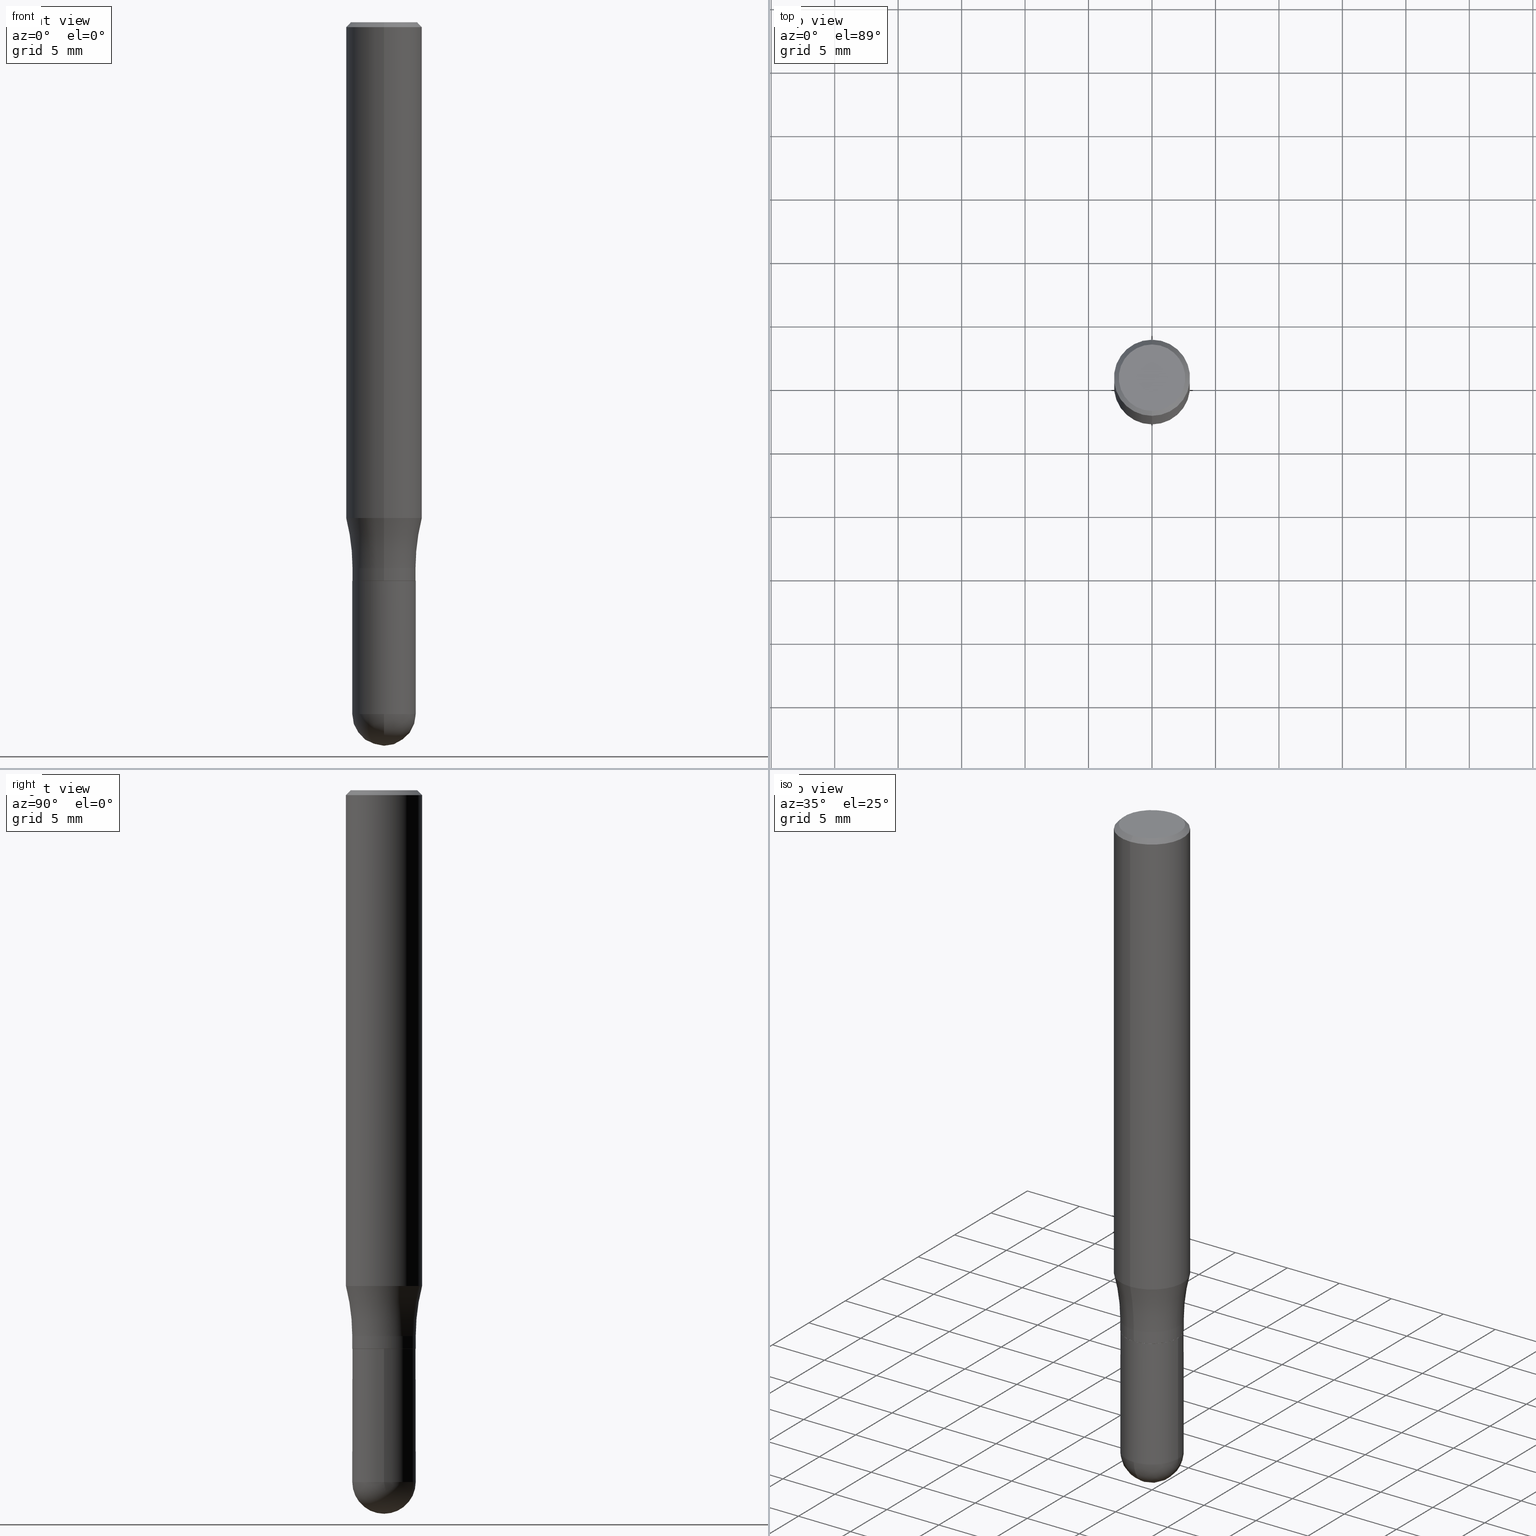
[diagram: canonical four-view strip — front | top / right | iso, engineering-drawing reading convention]
A machine part, canonical four-view strip (front | top / right | iso — engineering-drawing reading convention). The complete STEP part file that produces these views, byte-faithful:
ISO-10303-21;
HEADER;
FILE_DESCRIPTION (( 'STEP AP203' ),
    '1' );
FILE_NAME ('46356.STEP',
    '2024-03-01T12:59:02',
    ( '' ),
    ( '' ),
    'SwSTEP 2.0',
    'SolidWorks 2023',
    '' );
FILE_SCHEMA (( 'CONFIG_CONTROL_DESIGN' ));
ENDSEC;

DATA;
#1 = DIRECTION ( 'NONE',  ( -2.443807302118375461E-29, 3.493860707233685893E-15, 1.000000000000000000 ) ) ;
#2 = CALENDAR_DATE ( 2024, 1, 3 ) ;
#3 = FACE_OUTER_BOUND ( 'NONE', #150, .T. ) ;
#4 = CARTESIAN_POINT ( 'NONE',  ( 5.247120143991138777E-29, -7.491496934688795271E-15, -2.145650000000000279 ) ) ;
#5 = DIRECTION ( 'NONE',  ( -6.982962677686265922E-15, -1.000000000000000000, 3.493860707233685893E-15 ) ) ;
#6 = CIRCLE ( 'NONE', #54, 0.09794999999999999540 ) ;
#7 = FACE_OUTER_BOUND ( 'NONE', #89, .T. ) ;
#8 = CC_DESIGN_PERSON_AND_ORGANIZATION_ASSIGNMENT ( #471, #164, ( #155 ) ) ;
#9 = ADVANCED_FACE ( 'NONE', ( #337 ), #347, .T. ) ;
#10 = CARTESIAN_POINT ( 'NONE',  ( -7.587710785535310407E-16, -0.1031000000000000111, 5.434731219886950352E-16 ) ) ;
#11 = DIRECTION ( 'NONE',  ( -2.443807302118375461E-29, 3.493860707233685893E-15, 1.000000000000000000 ) ) ;
#12 = CARTESIAN_POINT ( 'NONE',  ( 4.233407389459661794E-29, -6.052414903140915146E-15, -1.732299999999999951 ) ) ;
#13 = CIRCLE ( 'NONE', #423, 0.6250000000000001110 ) ;
#14 = ORIENTED_EDGE ( 'NONE', *, *, #114, .T. ) ;
#15 =( GEOMETRIC_REPRESENTATION_CONTEXT ( 3 ) GLOBAL_UNCERTAINTY_ASSIGNED_CONTEXT ( ( #134 ) ) GLOBAL_UNIT_ASSIGNED_CONTEXT ( ( #237, #353, #272 ) ) REPRESENTATION_CONTEXT ( 'NONE', 'WORKASPACE' ) );
#16 = CARTESIAN_POINT ( 'NONE',  ( 7.199434520694541042E-16, 0.1031000000000000111, -2.685889973793420729E-16 ) ) ;
#17 = DIRECTION ( 'NONE',  ( -6.982962677686265133E-15, -1.000000000000000000, 2.789022964435184631E-15 ) ) ;
#18 = ORIENTED_EDGE ( 'NONE', *, *, #58, .T. ) ;
#19 = CARTESIAN_POINT ( 'NONE',  ( 3.665710953177518438E-31, -5.240791060850465138E-17, -0.01499999999999981730 ) ) ;
#20 = ORIENTED_EDGE ( 'NONE', *, *, #348, .F. ) ;
#21 = EDGE_CURVE ( 'NONE', #224, #66, #464, .T. ) ;
#22 = AXIS2_PLACEMENT_3D ( 'NONE', #410, #11, #178 ) ;
#23 = CYLINDRICAL_SURFACE ( 'NONE', #477, 0.09844999999999999585 ) ;
#24 = VERTEX_POINT ( 'NONE', #470 ) ;
#25 = EDGE_LOOP ( 'NONE', ( #491, #377, #308, #436 ) ) ;
#26 = ADVANCED_FACE ( 'NONE', ( #257 ), #305, .F. ) ;
#27 = EDGE_LOOP ( 'NONE', ( #292, #458, #28, #101 ) ) ;
#28 = ORIENTED_EDGE ( 'NONE', *, *, #480, .T. ) ;
#29 = AXIS2_PLACEMENT_3D ( 'NONE', #301, #265, #221 ) ;
#30 = VERTEX_POINT ( 'NONE', #501 ) ;
#31 = ORIENTED_EDGE ( 'NONE', *, *, #487, .T. ) ;
#32 = VERTEX_POINT ( 'NONE', #426 ) ;
#33 = ORIENTED_EDGE ( 'NONE', *, *, #283, .F. ) ;
#34 = FACE_OUTER_BOUND ( 'NONE', #290, .T. ) ;
#35 = EDGE_CURVE ( 'NONE', #224, #373, #484, .T. ) ;
#36 =( LENGTH_UNIT ( ) NAMED_UNIT ( * ) SI_UNIT ( $, .METRE. ) );
#37 = AXIS2_PLACEMENT_3D ( 'NONE', #318, #42, #429 ) ;
#38 = ORGANIZATION ( 'UNSPECIFIED', 'UNSPECIFIED', '' ) ;
#39 = DIRECTION ( 'NONE',  ( -2.445468806185136597E-29, 3.491481338843145583E-15, 1.000000000000000000 ) ) ;
#40 = PERSON_AND_ORGANIZATION_ROLE ( 'design_owner' ) ;
#41 = APPROVAL_ROLE ( '' ) ;
#42 = DIRECTION ( 'NONE',  ( -2.445468806185136597E-29, 3.491481338843145583E-15, 1.000000000000000000 ) ) ;
#43 = CARTESIAN_POINT ( 'NONE',  ( -5.051824349172086656E-15, -0.7234500000000058106, -1.693099999999997607 ) ) ;
#44 = ADVANCED_FACE ( 'NONE', ( #345 ), #23, .T. ) ;
#45 = CYLINDRICAL_SURFACE ( 'NONE', #103, 0.1181000000000000383 ) ;
#46 = APPROVAL_STATUS ( 'not_yet_approved' ) ;
#47 = AXIS2_PLACEMENT_3D ( 'NONE', #12, #52, #17 ) ;
#48 = AXIS2_PLACEMENT_3D ( 'NONE', #440, #481, #55 ) ;
#49 = CARTESIAN_POINT ( 'NONE',  ( 5.238701031874166970E-29, -7.503553582426400821E-15, -2.145650000000000279 ) ) ;
#50 = CARTESIAN_POINT ( 'NONE',  ( -6.839811942793273489E-16, -0.09795000000000603224, -1.732299999999999729 ) ) ;
#51 = PRODUCT_RELATED_PRODUCT_CATEGORY ( 'detail', '', ( #300 ) ) ;
#52 = DIRECTION ( 'NONE',  ( -2.443807302118375461E-29, 3.493860707233685893E-15, 1.000000000000000000 ) ) ;
#53 = DIRECTION ( 'NONE',  ( 6.982962677686265922E-15, 1.000000000000000000, -3.493860707233685893E-15 ) ) ;
#54 = AXIS2_PLACEMENT_3D ( 'NONE', #81, #284, #437 ) ;
#55 = DIRECTION ( 'NONE',  ( -6.982962677686265922E-15, -1.000000000000000000, 0.000000000000000000 ) ) ;
#56 = CC_DESIGN_PERSON_AND_ORGANIZATION_ASSIGNMENT ( #476, #317, ( #495 ) ) ;
#57 = FACE_OUTER_BOUND ( 'NONE', #106, .T. ) ;
#58 = EDGE_CURVE ( 'NONE', #24, #30, #259, .T. ) ;
#59 = ORIENTED_EDGE ( 'NONE', *, *, #187, .F. ) ;
#60 = AXIS2_PLACEMENT_3D ( 'NONE', #176, #98, #286 ) ;
#61 = VERTEX_POINT ( 'NONE', #462 ) ;
#62 = DIRECTION ( 'NONE',  ( -6.982962677686265133E-15, -1.000000000000000000, 2.774858297271984292E-15 ) ) ;
#63 = EDGE_CURVE ( 'NONE', #185, #190, #340, .T. ) ;
#64 = DIRECTION ( 'NONE',  ( -2.445468806185136877E-29, 3.491481338843145188E-15, 1.000000000000000000 ) ) ;
#65 = DIRECTION ( 'NONE',  ( 1.000000000000000000, -6.982962677686265922E-15, 0.000000000000000000 ) ) ;
#66 = VERTEX_POINT ( 'NONE', #222 ) ;
#67 = CIRCLE ( 'NONE', #385, 0.09844999999999980156 ) ;
#68 = APPLICATION_CONTEXT ( 'configuration controlled 3d designs of mechanical parts and assemblies' ) ;
#69 = CARTESIAN_POINT ( 'NONE',  ( 4.232185485808603177E-29, -6.050667972787298543E-15, -1.731800000000000006 ) ) ;
#70 = EDGE_LOOP ( 'NONE', ( #31, #502 ) ) ;
#71 = DIRECTION ( 'NONE',  ( 0.000000000000000000, 0.000000000000000000, 1.000000000000000000 ) ) ;
#72 = EDGE_CURVE ( 'NONE', #95, #24, #379, .T. ) ;
#73 = DIRECTION ( 'NONE',  ( -2.443807302118375461E-29, 3.493860707233685893E-15, 1.000000000000000000 ) ) ;
#74 = DATE_TIME_ROLE ( 'creation_date' ) ;
#75 = DIRECTION ( 'NONE',  ( 1.000000000000000000, -6.982962677686265922E-15, 0.000000000000000000 ) ) ;
#76 = AXIS2_PLACEMENT_3D ( 'NONE', #445, #210, #371 ) ;
#77 = CIRCLE ( 'NONE', #48, 0.09844999999999980156 ) ;
#78 = COORDINATED_UNIVERSAL_TIME_OFFSET ( 5, 0, .BEHIND. ) ;
#79 = DIRECTION ( 'NONE',  ( 1.000000000000000000, -6.982962677686265133E-15, 4.883557194083112340E-29 ) ) ;
#80 = EDGE_CURVE ( 'NONE', #190, #144, #124, .T. ) ;
#81 = CARTESIAN_POINT ( 'NONE',  ( 4.233407389459661794E-29, -6.052414903140915146E-15, -1.732299999999999951 ) ) ;
#82 = CARTESIAN_POINT ( 'NONE',  ( 8.391509709327163582E-16, 0.1180999999999946815, -1.537612452267070218 ) ) ;
#83 = ORIENTED_EDGE ( 'NONE', *, *, #331, .F. ) ;
#84 = DIRECTION ( 'NONE',  ( -2.445468806185136597E-29, 3.491481338843145583E-15, 1.000000000000000000 ) ) ;
#85 = PERSON_AND_ORGANIZATION ( #509, #38 ) ;
#86 = AXIS2_PLACEMENT_3D ( 'NONE', #160, #71, #158 ) ;
#87 = CYLINDRICAL_SURFACE ( 'NONE', #76, 0.09844999999999988483 ) ;
#88 = DIRECTION ( 'NONE',  ( 7.105427357601001070E-15, 1.000000000000000000, 0.000000000000000000 ) ) ;
#89 = EDGE_LOOP ( 'NONE', ( #510, #219, #223, #324 ) ) ;
#90 = PLANE ( 'NONE',  #200 ) ;
#91 = EDGE_LOOP ( 'NONE', ( #507, #403, #59, #212, #177 ) ) ;
#92 = CARTESIAN_POINT ( 'NONE',  ( 4.137610143216622021E-29, -5.915455563417354212E-15, -1.693100000000000049 ) ) ;
#93 = CONICAL_SURFACE ( 'NONE', #415, 0.09794999999999999540, 0.7853981633974653764 ) ;
#94 = AXIS2_PLACEMENT_3D ( 'NONE', #49, #79, #355 ) ;
#95 = VERTEX_POINT ( 'NONE', #10 ) ;
#96 = SECURITY_CLASSIFICATION ( '', '', #285 ) ;
#97 = EDGE_CURVE ( 'NONE', #373, #224, #6, .T. ) ;
#98 = DIRECTION ( 'NONE',  ( -2.443807302118375461E-29, 3.493860707233685893E-15, 1.000000000000000000 ) ) ;
#99 = ORIENTED_EDGE ( 'NONE', *, *, #72, .T. ) ;
#100 = DIRECTION ( 'NONE',  ( -2.443807302118375461E-29, 3.493860707233685893E-15, 1.000000000000000000 ) ) ;
#101 = ORIENTED_EDGE ( 'NONE', *, *, #255, .F. ) ;
#102 = ORIENTED_EDGE ( 'NONE', *, *, #506, .F. ) ;
#103 = AXIS2_PLACEMENT_3D ( 'NONE', #434, #1, #236 ) ;
#104 = ORIENTED_EDGE ( 'NONE', *, *, #119, .T. ) ;
#105 = CIRCLE ( 'NONE', #201, 0.1031000000000000111 ) ;
#106 = EDGE_LOOP ( 'NONE', ( #131, #306, #366, #307 ) ) ;
#107 = ORIENTED_EDGE ( 'NONE', *, *, #446, .F. ) ;
#108 = CARTESIAN_POINT ( 'NONE',  ( 3.665710953177518438E-31, -5.240791060850465138E-17, -0.01499999999999981730 ) ) ;
#109 = ORIENTED_EDGE ( 'NONE', *, *, #80, .T. ) ;
#110 = ORIENTED_EDGE ( 'NONE', *, *, #137, .F. ) ;
#111 = DIRECTION ( 'NONE',  ( 1.000000000000000000, -6.982962677686265133E-15, 4.883557194083112340E-29 ) ) ;
#112 = AXIS2_PLACEMENT_3D ( 'NONE', #288, #490, #135 ) ;
#113 = CIRCLE ( 'NONE', #235, 0.09844999999999991258 ) ;
#114 = EDGE_CURVE ( 'NONE', #66, #32, #166, .T. ) ;
#115 = ADVANCED_FACE ( 'NONE', ( #7 ), #314, .T. ) ;
#116 = CARTESIAN_POINT ( 'NONE',  ( 8.391509709326783943E-16, 0.1181000000000000383, -4.126249495242984185E-16 ) ) ;
#117 = COORDINATED_UNIVERSAL_TIME_OFFSET ( 5, 0, .BEHIND. ) ;
#118 = CARTESIAN_POINT ( 'NONE',  ( -8.246878922347482626E-16, -0.1181000000000000383, 4.126249495242984185E-16 ) ) ;
#119 = EDGE_CURVE ( 'NONE', #149, #24, #230, .T. ) ;
#120 = PERSON_AND_ORGANIZATION ( #509, #38 ) ;
#121 = CIRCLE ( 'NONE', #405, 0.09844999999999999585 ) ;
#122 = CARTESIAN_POINT ( 'NONE',  ( -8.246878922347102001E-16, -0.1181000000000054229, -1.537612452267069552 ) ) ;
#123 = CALENDAR_DATE ( 2024, 1, 3 ) ;
#124 = LINE ( 'NONE', #386, #361 ) ;
#125 = CALENDAR_DATE ( 2024, 1, 3 ) ;
#126 = DATE_TIME_ROLE ( 'classification_date' ) ;
#127 = FACE_OUTER_BOUND ( 'NONE', #247, .T. ) ;
#128 = VECTOR ( 'NONE', #182, 39.37007874015748143 ) ;
#129 = LOCAL_TIME ( 7, 59, 2.000000000000000000, #117 ) ;
#130 = CARTESIAN_POINT ( 'NONE',  ( 4.236285612954512392E-29, -6.048293123277981078E-15, -1.732299999999999951 ) ) ;
#131 = ORIENTED_EDGE ( 'NONE', *, *, #72, .F. ) ;
#132 = LINE ( 'NONE', #141, #252 ) ;
#133 = VERTEX_POINT ( 'NONE', #274 ) ;
#134 = UNCERTAINTY_MEASURE_WITH_UNIT (LENGTH_MEASURE( 1.000000000000000082E-05 ), #237, 'distance_accuracy_value', 'NONE');
#135 = DIRECTION ( 'NONE',  ( -6.982962677686265922E-15, -1.000000000000000000, 4.626330217890367758E-15 ) ) ;
#136 = ORIENTED_EDGE ( 'NONE', *, *, #424, .F. ) ;
#137 = EDGE_CURVE ( 'NONE', #61, #185, #121, .T. ) ;
#138 = FACE_OUTER_BOUND ( 'NONE', #70, .T. ) ;
#139 = VECTOR ( 'NONE', #432, 39.37007874015748143 ) ;
#140 = APPROVAL ( #474, 'UNSPECIFIED' ) ;
#141 = CARTESIAN_POINT ( 'NONE',  ( -0.09844999999999999585, 6.995293233558186035E-16, -4.842691596355954042E-30 ) ) ;
#142 = EDGE_LOOP ( 'NONE', ( #154, #420, #183, #417 ) ) ;
#143 = CARTESIAN_POINT ( 'NONE',  ( 0.000000000000000000, 0.000000000000000000, 0.000000000000000000 ) ) ;
#144 = VERTEX_POINT ( 'NONE', #359 ) ;
#145 = CARTESIAN_POINT ( 'NONE',  ( 7.723156721521011834E-16, 0.1031000000000000111, -1.769609558428910937E-16 ) ) ;
#146 = PRODUCT_DEFINITION_SHAPE ( 'NONE', 'NONE',  #155 ) ;
#147 = DIRECTION ( 'NONE',  ( -6.982962677686265133E-15, -1.000000000000000000, 2.789022964435184631E-15 ) ) ;
#148 = AXIS2_PLACEMENT_3D ( 'NONE', #130, #213, #253 ) ;
#149 = VERTEX_POINT ( 'NONE', #122 ) ;
#150 = EDGE_LOOP ( 'NONE', ( #338, #482, #485, #414 ) ) ;
#151 = CYLINDRICAL_SURFACE ( 'NONE', #486, 0.09844999999999988483 ) ;
#152 = ORIENTED_EDGE ( 'NONE', *, *, #203, .F. ) ;
#153 = DIRECTION ( 'NONE',  ( -6.982962677686265133E-15, -1.000000000000000000, 2.774858297271981531E-15 ) ) ;
#154 = ORIENTED_EDGE ( 'NONE', *, *, #114, .F. ) ;
#155 = PRODUCT_DEFINITION ( 'UNKNOWN', '', #495, #204 ) ;
#156 = DIRECTION ( 'NONE',  ( 1.000000000000000000, -6.982962677686266711E-15, 4.876176775795936353E-29 ) ) ;
#157 = CIRCLE ( 'NONE', #37, 0.09844999999999999585 ) ;
#158 = DIRECTION ( 'NONE',  ( 1.000000000000000000, 0.000000000000000000, 0.000000000000000000 ) ) ;
#159 = DIRECTION ( 'NONE',  ( -2.445468806185136597E-29, 3.491481338843145583E-15, 1.000000000000000000 ) ) ;
#160 = CARTESIAN_POINT ( 'NONE',  ( 0.000000000000000000, 0.000000000000000000, 0.000000000000000000 ) ) ;
#161 = EDGE_CURVE ( 'NONE', #508, #30, #199, .T. ) ;
#162 = CARTESIAN_POINT ( 'NONE',  ( 4.233407389459661794E-29, -6.052414903140915146E-15, -1.732299999999999951 ) ) ;
#163 = LINE ( 'NONE', #197, #172 ) ;
#164 = PERSON_AND_ORGANIZATION_ROLE ( 'creator' ) ;
#165 = CONICAL_SURFACE ( 'NONE', #193, 0.1180999999999999966, 0.7853981633974480570 ) ;
#166 = LINE ( 'NONE', #472, #350 ) ;
#167 = CARTESIAN_POINT ( 'NONE',  ( -8.102248135368174406E-16, -0.1181000000000000522, -0.01499999999999940443 ) ) ;
#168 = EDGE_CURVE ( 'NONE', #190, #511, #157, .T. ) ;
#169 = APPROVAL_DATE_TIME ( #205, #140 ) ;
#170 = FACE_OUTER_BOUND ( 'NONE', #310, .T. ) ;
#171 = ORIENTED_EDGE ( 'NONE', *, *, #370, .T. ) ;
#172 = VECTOR ( 'NONE', #276, 39.37007874015748143 ) ;
#173 = AXIS2_PLACEMENT_3D ( 'NONE', #43, #229, #270 ) ;
#174 = DIRECTION ( 'NONE',  ( -6.982962677686265922E-15, -1.000000000000000000, 3.493860707233685498E-15 ) ) ;
#175 = EDGE_LOOP ( 'NONE', ( #449, #14, #266, #107 ) ) ;
#176 = CARTESIAN_POINT ( 'NONE',  ( -4.478425539711694283E-45, 6.402712280099643174E-31, 1.832560830729019338E-16 ) ) ;
#177 = ORIENTED_EDGE ( 'NONE', *, *, #168, .T. ) ;
#178 = DIRECTION ( 'NONE',  ( -6.982962677686265133E-15, -1.000000000000000000, 2.774858297271981531E-15 ) ) ;
#179 = ORIENTED_EDGE ( 'NONE', *, *, #161, .F. ) ;
#180 = DIRECTION ( 'NONE',  ( -2.443807302118375461E-29, 3.493860707233685893E-15, 1.000000000000000000 ) ) ;
#181 = CIRCLE ( 'NONE', #319, 0.1181000000000000522 ) ;
#182 = DIRECTION ( 'NONE',  ( 5.024295867788147587E-15, 0.7071067811865620056, 0.7071067811865330288 ) ) ;
#183 = ORIENTED_EDGE ( 'NONE', *, *, #446, .T. ) ;
#184 = ORIENTED_EDGE ( 'NONE', *, *, #406, .F. ) ;
#185 = VERTEX_POINT ( 'NONE', #271 ) ;
#186 = CIRCLE ( 'NONE', #293, 0.09844999999999999585 ) ;
#187 = EDGE_CURVE ( 'NONE', #144, #214, #186, .T. ) ;
#188 = CARTESIAN_POINT ( 'NONE',  ( 6.874726756182551586E-16, 0.09844999999999394513, -1.732300000000000173 ) ) ;
#189 = ADVANCED_FACE ( 'NONE', ( #34 ), #238, .F. ) ;
#190 = VERTEX_POINT ( 'NONE', #351 ) ;
#191 = PERSON_AND_ORGANIZATION ( #509, #38 ) ;
#192 = DIRECTION ( 'NONE',  ( -6.982962677686265922E-15, -1.000000000000000000, 3.493860707233685893E-15 ) ) ;
#193 = AXIS2_PLACEMENT_3D ( 'NONE', #19, #493, #365 ) ;
#194 = TOROIDAL_SURFACE ( 'NONE', #460, 0.7234499999999999265, 0.6250000000000000000 ) ;
#195 = CARTESIAN_POINT ( 'NONE',  ( 0.000000000000000000, 0.000000000000000000, 0.000000000000000000 ) ) ;
#196 = CALENDAR_DATE ( 2024, 1, 3 ) ;
#197 = CARTESIAN_POINT ( 'NONE',  ( 8.246878922347483612E-16, 0.1180999999999999411, -0.01500000000000022843 ) ) ;
#198 = APPROVAL_ROLE ( '' ) ;
#199 = LINE ( 'NONE', #116, #244 ) ;
#200 = AXIS2_PLACEMENT_3D ( 'NONE', #16, #329, #53 ) ;
#201 = AXIS2_PLACEMENT_3D ( 'NONE', #412, #262, #418 ) ;
#202 = CARTESIAN_POINT ( 'NONE',  ( 4.233407389459661794E-29, -6.052414903140915146E-15, -1.732299999999999951 ) ) ;
#203 = EDGE_CURVE ( 'NONE', #455, #30, #163, .T. ) ;
#204 = DESIGN_CONTEXT ( 'detailed design', #499, 'design' ) ;
#205 = DATE_AND_TIME ( #196, #269 ) ;
#206 = CARTESIAN_POINT ( 'NONE',  ( 0.000000000000000000, 0.000000000000000000, 0.000000000000000000 ) ) ;
#207 = DIRECTION ( 'NONE',  ( 1.000000000000000000, -7.105427357601001070E-15, 4.926315508542082329E-29 ) ) ;
#208 = ORIENTED_EDGE ( 'NONE', *, *, #297, .F. ) ;
#209 = CC_DESIGN_SECURITY_CLASSIFICATION ( #96, ( #495 ) ) ;
#210 = DIRECTION ( 'NONE',  ( -2.443807302118375461E-29, 3.493860707233685893E-15, 1.000000000000000000 ) ) ;
#211 = DIRECTION ( 'NONE',  ( -2.445468806185136597E-29, 3.491481338843145583E-15, 1.000000000000000000 ) ) ;
#212 = ORIENTED_EDGE ( 'NONE', *, *, #80, .F. ) ;
#213 = DIRECTION ( 'NONE',  ( -2.445468806185136597E-29, 3.491481338843145583E-15, 1.000000000000000000 ) ) ;
#214 = VERTEX_POINT ( 'NONE', #427 ) ;
#215 = AXIS2_PLACEMENT_3D ( 'NONE', #245, #448, #454 ) ;
#216 = DIRECTION ( 'NONE',  ( -2.443807302118375461E-29, 3.493860707233685893E-15, 1.000000000000000000 ) ) ;
#217 = EDGE_CURVE ( 'NONE', #149, #508, #181, .T. ) ;
#218 = CARTESIAN_POINT ( 'NONE',  ( -6.874726756182120670E-16, -0.09844999999999988483, 3.439705866271559658E-16 ) ) ;
#219 = ORIENTED_EDGE ( 'NONE', *, *, #282, .T. ) ;
#220 = ORIENTED_EDGE ( 'NONE', *, *, #187, .T. ) ;
#221 = DIRECTION ( 'NONE',  ( -6.982962677686265922E-15, -1.000000000000000000, 2.774858297271982715E-15 ) ) ;
#222 = CARTESIAN_POINT ( 'NONE',  ( 6.995293233558596243E-16, 0.09844999999999386187, -1.731800000000000450 ) ) ;
#223 = ORIENTED_EDGE ( 'NONE', *, *, #168, .F. ) ;
#224 = VERTEX_POINT ( 'NONE', #395 ) ;
#225 = ADVANCED_FACE ( 'NONE', ( #280 ), #45, .T. ) ;
#226 = DIRECTION ( 'NONE',  ( -2.443807302118375461E-29, 3.493860707233685893E-15, 1.000000000000000000 ) ) ;
#227 = CARTESIAN_POINT ( 'NONE',  ( 6.959766096770603035E-16, 0.09794999999999394469, -1.732300000000000173 ) ) ;
#228 = DIRECTION ( 'NONE',  ( 2.438088387897960049E-29, -3.491481338843145188E-15, -1.000000000000000000 ) ) ;
#229 = DIRECTION ( 'NONE',  ( -1.000000000000000000, 6.982962677686265922E-15, -4.883557194083112340E-29 ) ) ;
#230 = LINE ( 'NONE', #118, #233 ) ;
#231 = DIRECTION ( 'NONE',  ( -2.443807302118375461E-29, 3.493860707233685893E-15, 1.000000000000000000 ) ) ;
#232 = DIRECTION ( 'NONE',  ( -6.982962677686265922E-15, -1.000000000000000000, 4.626330217890367758E-15 ) ) ;
#233 = VECTOR ( 'NONE', #322, 39.37007874015748143 ) ;
#234 = PERSON_AND_ORGANIZATION ( #509, #38 ) ;
#235 = AXIS2_PLACEMENT_3D ( 'NONE', #69, #226, #153 ) ;
#236 = DIRECTION ( 'NONE',  ( -6.982962677686265922E-15, -1.000000000000000000, 3.493860707233685893E-15 ) ) ;
#237 =( CONVERSION_BASED_UNIT ( 'INCH', #320 ) LENGTH_UNIT ( ) NAMED_UNIT ( #392 ) );
#238 = PLANE ( 'NONE',  #251 ) ;
#239 = APPROVAL_ROLE ( '' ) ;
#240 = ADVANCED_FACE ( 'NONE', ( #393 ), #321, .T. ) ;
#241 = ADVANCED_FACE ( 'NONE', ( #3 ), #93, .T. ) ;
#242 = DIRECTION ( 'NONE',  ( -2.443807302118375461E-29, 3.493860707233685893E-15, 1.000000000000000000 ) ) ;
#243 = PERSON_AND_ORGANIZATION_ROLE ( 'classification_officer' ) ;
#244 = VECTOR ( 'NONE', #242, 39.37007874015748143 ) ;
#245 = CARTESIAN_POINT ( 'NONE',  ( 3.665710953177518438E-31, -5.240791060850465138E-17, -0.01499999999999981730 ) ) ;
#246 = DIRECTION ( 'NONE',  ( 1.000000000000000000, -7.105427357601001070E-15, 4.926344647400916532E-29 ) ) ;
#247 = EDGE_LOOP ( 'NONE', ( #179, #401, #104, #136 ) ) ;
#248 = ADVANCED_FACE ( 'NONE', ( #57 ), #165, .T. ) ;
#249 = CARTESIAN_POINT ( 'NONE',  ( 5.238701031874166970E-29, -7.503553582426400821E-15, -2.145650000000000279 ) ) ;
#250 = ADVANCED_BREP_SHAPE_REPRESENTATION ( '46356', ( #457, #447, #86 ), #15 ) ;
#251 = AXIS2_PLACEMENT_3D ( 'NONE', #202, #360, #192 ) ;
#252 = VECTOR ( 'NONE', #64, 39.37007874015748143 ) ;
#253 = DIRECTION ( 'NONE',  ( 1.000000000000000000, -6.982962677686265922E-15, 0.000000000000000000 ) ) ;
#254 = FACE_OUTER_BOUND ( 'NONE', #411, .T. ) ;
#255 = EDGE_CURVE ( 'NONE', #66, #133, #450, .T. ) ;
#256 = LINE ( 'NONE', #378, #311 ) ;
#257 = FACE_OUTER_BOUND ( 'NONE', #444, .T. ) ;
#258 = DIRECTION ( 'NONE',  ( -6.982962677686265922E-15, -1.000000000000000000, 3.493860707233685498E-15 ) ) ;
#259 = CIRCLE ( 'NONE', #277, 0.1180999999999999966 ) ;
#260 = LOCAL_TIME ( 7, 59, 2.000000000000000000, #315 ) ;
#261 = CARTESIAN_POINT ( 'NONE',  ( 4.233407389459661794E-29, -6.052414903140915146E-15, -1.732299999999999951 ) ) ;
#262 = DIRECTION ( 'NONE',  ( -2.443807302118375461E-29, 3.493860707233685893E-15, 1.000000000000000000 ) ) ;
#263 = CARTESIAN_POINT ( 'NONE',  ( 5.247120143991138777E-29, -7.491496934688795271E-15, -2.145650000000000279 ) ) ;
#264 = CC_DESIGN_PERSON_AND_ORGANIZATION_ASSIGNMENT ( #191, #40, ( #300 ) ) ;
#265 = DIRECTION ( 'NONE',  ( -2.443807302118375461E-29, 3.493860707233685893E-15, 1.000000000000000000 ) ) ;
#266 = ORIENTED_EDGE ( 'NONE', *, *, #456, .F. ) ;
#267 = AXIS2_PLACEMENT_3D ( 'NONE', #299, #111, #62 ) ;
#268 = VERTEX_POINT ( 'NONE', #404 ) ;
#269 = LOCAL_TIME ( 7, 59, 2.000000000000000000, #78 ) ;
#270 = DIRECTION ( 'NONE',  ( -6.982962677686265133E-15, -1.000000000000000000, 0.000000000000000000 ) ) ;
#271 = CARTESIAN_POINT ( 'NONE',  ( -6.874726756181597064E-16, -0.09845000000000739271, -2.145649999999999835 ) ) ;
#272 =( NAMED_UNIT ( * ) SI_UNIT ( $, .STERADIAN. ) SOLID_ANGLE_UNIT ( ) );
#273 = ORIENTED_EDGE ( 'NONE', *, *, #137, .T. ) ;
#274 = CARTESIAN_POINT ( 'NONE',  ( -6.874726756181698630E-16, -0.09845000000000594942, -1.731799999999999784 ) ) ;
#275 = APPLICATION_PROTOCOL_DEFINITION ( 'international standard', 'config_control_design', 1994, #499 ) ;
#276 = DIRECTION ( 'NONE',  ( 4.937700262164546464E-15, 0.7071067811865449082, -0.7071067811865501263 ) ) ;
#277 = AXIS2_PLACEMENT_3D ( 'NONE', #304, #497, #335 ) ;
#278 = PERSON_AND_ORGANIZATION ( #509, #38 ) ;
#279 = CIRCLE ( 'NONE', #29, 0.09844999999999987095 ) ;
#280 = FACE_OUTER_BOUND ( 'NONE', #25, .T. ) ;
#281 = DATE_AND_TIME ( #123, #260 ) ;
#282 = EDGE_CURVE ( 'NONE', #295, #511, #67, .T. ) ;
#283 = EDGE_CURVE ( 'NONE', #214, #144, #309, .T. ) ;
#284 = DIRECTION ( 'NONE',  ( -2.443807302118375461E-29, 3.493860707233685893E-15, 1.000000000000000000 ) ) ;
#285 = SECURITY_CLASSIFICATION_LEVEL ( 'unclassified' ) ;
#286 = DIRECTION ( 'NONE',  ( -6.982962677686265922E-15, -1.000000000000000000, 3.493860707233685498E-15 ) ) ;
#287 = VECTOR ( 'NONE', #298, 39.37007874015748143 ) ;
#288 = CARTESIAN_POINT ( 'NONE',  ( 3.757628538678407478E-29, -5.372203729929147794E-15, -1.537612452267069996 ) ) ;
#289 = DIRECTION ( 'NONE',  ( 7.105427357601000281E-15, 1.000000000000000000, 0.000000000000000000 ) ) ;
#290 = EDGE_LOOP ( 'NONE', ( #376, #498 ) ) ;
#291 = CARTESIAN_POINT ( 'NONE',  ( 5.247120143991138777E-29, -7.491496934688795271E-15, -2.145650000000000279 ) ) ;
#292 = ORIENTED_EDGE ( 'NONE', *, *, #21, .F. ) ;
#293 = AXIS2_PLACEMENT_3D ( 'NONE', #384, #39, #75 ) ;
#294 = DIRECTION ( 'NONE',  ( 1.000000000000000000, -6.982962677686265922E-15, 0.000000000000000000 ) ) ;
#295 = VERTEX_POINT ( 'NONE', #363 ) ;
#296 = ADVANCED_FACE ( 'NONE', ( #328 ), #87, .T. ) ;
#297 = EDGE_CURVE ( 'NONE', #508, #32, #13, .T. ) ;
#298 = DIRECTION ( 'NONE',  ( -2.443807302118375461E-29, 3.493860707233685893E-15, 1.000000000000000000 ) ) ;
#299 = CARTESIAN_POINT ( 'NONE',  ( 5.238701031874166970E-29, -7.503553582426400821E-15, -2.145650000000000279 ) ) ;
#300 = PRODUCT ( '46356', '46356', '', ( #391 ) ) ;
#301 = CARTESIAN_POINT ( 'NONE',  ( 4.137610143216622021E-29, -5.915455563417354212E-15, -1.693100000000000049 ) ) ;
#302 = AXIS2_PLACEMENT_3D ( 'NONE', #261, #216, #147 ) ;
#303 = ADVANCED_FACE ( 'NONE', ( #402 ), #494, .T. ) ;
#304 = CARTESIAN_POINT ( 'NONE',  ( 3.665710953177518438E-31, -5.240791060850465138E-17, -0.01499999999999981730 ) ) ;
#305 = PLANE ( 'NONE',  #503 ) ;
#306 = ORIENTED_EDGE ( 'NONE', *, *, #487, .F. ) ;
#307 = ORIENTED_EDGE ( 'NONE', *, *, #424, .T. ) ;
#308 = ORIENTED_EDGE ( 'NONE', *, *, #58, .F. ) ;
#309 = CIRCLE ( 'NONE', #148, 0.09844999999999999585 ) ;
#310 = EDGE_LOOP ( 'NONE', ( #421, #99, #18, #152 ) ) ;
#311 = VECTOR ( 'NONE', #461, 39.37007874015748143 ) ;
#312 = APPROVAL_DATE_TIME ( #394, #400 ) ;
#313 = ADVANCED_FACE ( 'NONE', ( #138 ), #90, .F. ) ;
#314 = SPHERICAL_SURFACE ( 'NONE', #94, 0.09844999999999980156 ) ;
#315 = COORDINATED_UNIVERSAL_TIME_OFFSET ( 5, 0, .BEHIND. ) ;
#316 = DIRECTION ( 'NONE',  ( -2.443807302118375461E-29, 3.493860707233685893E-15, 1.000000000000000000 ) ) ;
#317 = PERSON_AND_ORGANIZATION_ROLE ( 'creator' ) ;
#318 = CARTESIAN_POINT ( 'NONE',  ( 5.247120143991138777E-29, -7.491496934688795271E-15, -2.145650000000000279 ) ) ;
#319 = AXIS2_PLACEMENT_3D ( 'NONE', #479, #73, #232 ) ;
#320 = LENGTH_MEASURE_WITH_UNIT ( LENGTH_MEASURE( 0.02539999999999999897 ), #36 );
#321 = CYLINDRICAL_SURFACE ( 'NONE', #431, 0.09844999999999999585 ) ;
#322 = DIRECTION ( 'NONE',  ( -2.443807302118375461E-29, 3.493860707233685893E-15, 1.000000000000000000 ) ) ;
#323 = CARTESIAN_POINT ( 'NONE',  ( 4.140423235752054805E-29, -5.911427054795329676E-15, -1.693100000000000049 ) ) ;
#324 = ORIENTED_EDGE ( 'NONE', *, *, #63, .F. ) ;
#325 = CLOSED_SHELL ( 'NONE', ( #240, #115, #26, #9, #44 ) ) ;
#326 = CC_DESIGN_APPROVAL ( #330, ( #495 ) ) ;
#327 = DIRECTION ( 'NONE',  ( -6.982962677686265922E-15, -1.000000000000000000, 3.493860707233685893E-15 ) ) ;
#328 = FACE_OUTER_BOUND ( 'NONE', #142, .T. ) ;
#329 = DIRECTION ( 'NONE',  ( 2.443807302118375461E-29, -3.493860707233685893E-15, -1.000000000000000000 ) ) ;
#330 = APPROVAL ( #46, 'UNSPECIFIED' ) ;
#331 = EDGE_CURVE ( 'NONE', #508, #149, #332, .T. ) ;
#332 = CIRCLE ( 'NONE', #112, 0.1181000000000000522 ) ;
#333 = ORIENTED_EDGE ( 'NONE', *, *, #217, .F. ) ;
#334 = DIRECTION ( 'NONE',  ( -6.982962677686265922E-15, -1.000000000000000000, 3.487819265831411744E-15 ) ) ;
#335 = DIRECTION ( 'NONE',  ( -6.982962677686265922E-15, -1.000000000000000000, 3.487819265831411744E-15 ) ) ;
#336 = DIRECTION ( 'NONE',  ( -2.443807302118375461E-29, 3.493860707233685893E-15, 1.000000000000000000 ) ) ;
#337 = FACE_OUTER_BOUND ( 'NONE', #382, .T. ) ;
#338 = ORIENTED_EDGE ( 'NONE', *, *, #97, .T. ) ;
#339 = FACE_OUTER_BOUND ( 'NONE', #413, .T. ) ;
#340 = CIRCLE ( 'NONE', #459, 0.09844999999999999585 ) ;
#341 = APPROVAL_PERSON_ORGANIZATION ( #234, #400, #239 ) ;
#342 = DIRECTION ( 'NONE',  ( -1.000000000000000000, 6.982962677686265922E-15, -4.876176775795935793E-29 ) ) ;
#343 = ORIENTED_EDGE ( 'NONE', *, *, #381, .T. ) ;
#344 = CARTESIAN_POINT ( 'NONE',  ( 4.140423235752054805E-29, -5.911427054795329676E-15, -1.693100000000000049 ) ) ;
#345 = FACE_OUTER_BOUND ( 'NONE', #489, .T. ) ;
#346 = ORIENTED_EDGE ( 'NONE', *, *, #63, .T. ) ;
#347 = SPHERICAL_SURFACE ( 'NONE', #267, 0.09844999999999980156 ) ;
#348 = EDGE_CURVE ( 'NONE', #511, #61, #514, .T. ) ;
#349 = COORDINATED_UNIVERSAL_TIME_OFFSET ( 5, 0, .BEHIND. ) ;
#350 = VECTOR ( 'NONE', #475, 39.37007874015748143 ) ;
#351 = CARTESIAN_POINT ( 'NONE',  ( 0.09844999999999999585, -7.457367704601601918E-15, -2.145650000000000279 ) ) ;
#352 = AXIS2_PLACEMENT_3D ( 'NONE', #323, #180, #174 ) ;
#353 =( NAMED_UNIT ( * ) PLANE_ANGLE_UNIT ( ) SI_UNIT ( $, .RADIAN. ) );
#354 = PERSON_AND_ORGANIZATION ( #509, #38 ) ;
#355 = DIRECTION ( 'NONE',  ( -6.982962677686265133E-15, -1.000000000000000000, 2.774858297271984292E-15 ) ) ;
#356 = APPROVAL_STATUS ( 'not_yet_approved' ) ;
#357 = ADVANCED_FACE ( 'NONE', ( #170 ), #441, .T. ) ;
#358 = SHAPE_DEFINITION_REPRESENTATION ( #146, #250 ) ;
#359 = CARTESIAN_POINT ( 'NONE',  ( 0.09844999999999999585, -6.735765798896194427E-15, -1.732299999999999951 ) ) ;
#360 = DIRECTION ( 'NONE',  ( -2.443807302118375461E-29, 3.493860707233685893E-15, 1.000000000000000000 ) ) ;
#361 = VECTOR ( 'NONE', #478, 39.37007874015748143 ) ;
#362 = DIRECTION ( 'NONE',  ( 1.000000000000000000, -6.982962677686266711E-15, 4.876176775795936353E-29 ) ) ;
#363 = CARTESIAN_POINT ( 'NONE',  ( 5.475247879784608163E-29, -7.853318244104310665E-15, -2.244099999999999984 ) ) ;
#364 = EDGE_CURVE ( 'NONE', #95, #455, #374, .T. ) ;
#365 = DIRECTION ( 'NONE',  ( 6.982962677686265922E-15, 1.000000000000000000, -3.487819265831411744E-15 ) ) ;
#366 = ORIENTED_EDGE ( 'NONE', *, *, #203, .T. ) ;
#367 = CLOSED_SHELL ( 'NONE', ( #225, #357, #241, #496, #439, #383, #296, #303, #189, #313, #248, #389 ) ) ;
#368 = TOROIDAL_SURFACE ( 'NONE', #352, 0.7234499999999999265, 0.6250000000000000000 ) ;
#369 = CARTESIAN_POINT ( 'NONE',  ( 5.140421421856484504E-15, 0.7234499999999940423, -1.693100000000002492 ) ) ;
#370 = EDGE_CURVE ( 'NONE', #32, #268, #387, .T. ) ;
#371 = DIRECTION ( 'NONE',  ( -6.982962677686265922E-15, -1.000000000000000000, 3.493860707233685893E-15 ) ) ;
#372 = ORIENTED_EDGE ( 'NONE', *, *, #456, .T. ) ;
#373 = VERTEX_POINT ( 'NONE', #50 ) ;
#374 = CIRCLE ( 'NONE', #60, 0.1031000000000000111 ) ;
#375 = CC_DESIGN_APPROVAL ( #400, ( #155 ) ) ;
#376 = ORIENTED_EDGE ( 'NONE', *, *, #97, .F. ) ;
#377 = ORIENTED_EDGE ( 'NONE', *, *, #161, .T. ) ;
#378 = CARTESIAN_POINT ( 'NONE',  ( -6.839811942793273489E-16, -0.09795000000000603224, -1.732299999999999729 ) ) ;
#379 = LINE ( 'NONE', #167, #139 ) ;
#380 = ORIENTED_EDGE ( 'NONE', *, *, #282, .F. ) ;
#381 = EDGE_CURVE ( 'NONE', #295, #185, #77, .T. ) ;
#382 = EDGE_LOOP ( 'NONE', ( #380, #343, #110, #20 ) ) ;
#383 = ADVANCED_FACE ( 'NONE', ( #254 ), #368, .F. ) ;
#384 = CARTESIAN_POINT ( 'NONE',  ( 4.236285612954512392E-29, -6.048293123277981078E-15, -1.732299999999999951 ) ) ;
#385 = AXIS2_PLACEMENT_3D ( 'NONE', #249, #207, #88 ) ;
#386 = CARTESIAN_POINT ( 'NONE',  ( 0.09844999999999999585, -6.874726756182129545E-16, 4.800596035771099214E-30 ) ) ;
#387 = CIRCLE ( 'NONE', #469, 0.09844999999999987095 ) ;
#388 = APPROVAL_DATE_TIME ( #281, #330 ) ;
#389 = ADVANCED_FACE ( 'NONE', ( #127 ), #488, .T. ) ;
#390 = DIRECTION ( 'NONE',  ( 1.000000000000000000, -6.982962677686265922E-15, 0.000000000000000000 ) ) ;
#391 = MECHANICAL_CONTEXT ( 'NONE', #68, 'mechanical' ) ;
#392 = DIMENSIONAL_EXPONENTS ( 1.000000000000000000, 0.000000000000000000, 0.000000000000000000, 0.000000000000000000, 0.000000000000000000, 0.000000000000000000, 0.000000000000000000 ) ;
#393 = FACE_OUTER_BOUND ( 'NONE', #91, .T. ) ;
#394 = DATE_AND_TIME ( #513, #442 ) ;
#395 = CARTESIAN_POINT ( 'NONE',  ( 6.977529665164603583E-16, 0.09794999999999394469, -1.732300000000000173 ) ) ;
#396 = AXIS2_PLACEMENT_3D ( 'NONE', #291, #211, #294 ) ;
#397 = CC_DESIGN_APPROVAL ( #140, ( #96 ) ) ;
#398 = COORDINATED_UNIVERSAL_TIME_OFFSET ( 5, 0, .BEHIND. ) ;
#399 = DIRECTION ( 'NONE',  ( -6.982962677686265922E-15, -1.000000000000000000, 2.774858297271982715E-15 ) ) ;
#400 = APPROVAL ( #356, 'UNSPECIFIED' ) ;
#401 = ORIENTED_EDGE ( 'NONE', *, *, #331, .T. ) ;
#402 = FACE_OUTER_BOUND ( 'NONE', #27, .T. ) ;
#403 = ORIENTED_EDGE ( 'NONE', *, *, #406, .T. ) ;
#404 = CARTESIAN_POINT ( 'NONE',  ( -6.874726756181705532E-16, -0.09845000000000578289, -1.693099999999999827 ) ) ;
#405 = AXIS2_PLACEMENT_3D ( 'NONE', #4, #84, #390 ) ;
#406 = EDGE_CURVE ( 'NONE', #61, #214, #132, .T. ) ;
#407 = AXIS2_PLACEMENT_3D ( 'NONE', #108, #100, #334 ) ;
#408 = DIRECTION ( 'NONE',  ( -2.443807302118375461E-29, 3.493860707233685893E-15, 1.000000000000000000 ) ) ;
#409 = ORIENTED_EDGE ( 'NONE', *, *, #283, .T. ) ;
#410 = CARTESIAN_POINT ( 'NONE',  ( 4.232185485808603177E-29, -6.050667972787298543E-15, -1.731800000000000006 ) ) ;
#411 = EDGE_LOOP ( 'NONE', ( #208, #333, #463, #372 ) ) ;
#412 = CARTESIAN_POINT ( 'NONE',  ( -4.478425539711694283E-45, 6.402712280099643174E-31, 1.832560830729019338E-16 ) ) ;
#413 = EDGE_LOOP ( 'NONE', ( #83, #467, #171, #102 ) ) ;
#414 = ORIENTED_EDGE ( 'NONE', *, *, #480, .F. ) ;
#415 = AXIS2_PLACEMENT_3D ( 'NONE', #162, #316, #443 ) ;
#416 = APPROVAL_PERSON_ORGANIZATION ( #120, #330, #198 ) ;
#417 = ORIENTED_EDGE ( 'NONE', *, *, #370, .F. ) ;
#418 = DIRECTION ( 'NONE',  ( -6.982962677686265922E-15, -1.000000000000000000, 3.493860707233685498E-15 ) ) ;
#419 = DIRECTION ( 'NONE',  ( -2.445468806185136597E-29, 3.491481338843145583E-15, 1.000000000000000000 ) ) ;
#420 = ORIENTED_EDGE ( 'NONE', *, *, #255, .T. ) ;
#421 = ORIENTED_EDGE ( 'NONE', *, *, #364, .F. ) ;
#422 = CC_DESIGN_DATE_AND_TIME_ASSIGNMENT ( #428, #74, ( #155 ) ) ;
#423 = AXIS2_PLACEMENT_3D ( 'NONE', #369, #246, #289 ) ;
#424 = EDGE_CURVE ( 'NONE', #30, #24, #425, .T. ) ;
#425 = CIRCLE ( 'NONE', #407, 0.1180999999999999966 ) ;
#426 = CARTESIAN_POINT ( 'NONE',  ( 7.693401471442876954E-16, 0.09844999999999397289, -1.693100000000000271 ) ) ;
#427 = CARTESIAN_POINT ( 'NONE',  ( -0.09844999999999999585, -6.070365705627569670E-15, -1.732299999999999951 ) ) ;
#428 = DATE_AND_TIME ( #2, #129 ) ;
#429 = DIRECTION ( 'NONE',  ( 1.000000000000000000, -6.982962677686265922E-15, 0.000000000000000000 ) ) ;
#430 = CARTESIAN_POINT ( 'NONE',  ( 6.995293233558702739E-16, 0.09844999999999239082, -2.145650000000000279 ) ) ;
#431 = AXIS2_PLACEMENT_3D ( 'NONE', #195, #159, #362 ) ;
#432 = DIRECTION ( 'NONE',  ( -4.851104656540962697E-15, -0.7071067811865497932, -0.7071067811865452413 ) ) ;
#433 = LOCAL_TIME ( 7, 59, 2.000000000000000000, #398 ) ;
#434 = CARTESIAN_POINT ( 'NONE',  ( 0.000000000000000000, 0.000000000000000000, 0.000000000000000000 ) ) ;
#435 = PERSON_AND_ORGANIZATION_ROLE ( 'design_supplier' ) ;
#436 = ORIENTED_EDGE ( 'NONE', *, *, #119, .F. ) ;
#437 = DIRECTION ( 'NONE',  ( -6.982962677686265133E-15, -1.000000000000000000, 2.789022964435184631E-15 ) ) ;
#438 = DATE_AND_TIME ( #125, #433 ) ;
#439 = ADVANCED_FACE ( 'NONE', ( #339 ), #194, .F. ) ;
#440 = CARTESIAN_POINT ( 'NONE',  ( 5.238701031874166970E-29, -7.503553582426400821E-15, -2.145650000000000279 ) ) ;
#441 = CONICAL_SURFACE ( 'NONE', #215, 0.1180999999999999966, 0.7853981633974480570 ) ;
#442 = LOCAL_TIME ( 7, 59, 2.000000000000000000, #349 ) ;
#443 = DIRECTION ( 'NONE',  ( -6.982962677686265133E-15, -1.000000000000000000, 2.789022964435184631E-15 ) ) ;
#444 = EDGE_LOOP ( 'NONE', ( #220, #409 ) ) ;
#445 = CARTESIAN_POINT ( 'NONE',  ( 0.000000000000000000, 0.000000000000000000, 0.000000000000000000 ) ) ;
#446 = EDGE_CURVE ( 'NONE', #133, #268, #500, .T. ) ;
#447 = MANIFOLD_SOLID_BREP ( 'Body-Move/Copy2[2]', #367 ) ;
#448 = DIRECTION ( 'NONE',  ( 2.443807302118375461E-29, -3.493860707233685893E-15, -1.000000000000000000 ) ) ;
#449 = ORIENTED_EDGE ( 'NONE', *, *, #465, .T. ) ;
#450 = CIRCLE ( 'NONE', #22, 0.09844999999999991258 ) ;
#451 = AXIS2_PLACEMENT_3D ( 'NONE', #206, #483, #327 ) ;
#452 = CC_DESIGN_DATE_AND_TIME_ASSIGNMENT ( #438, #126, ( #96 ) ) ;
#453 = APPROVAL_PERSON_ORGANIZATION ( #354, #140, #41 ) ;
#454 = DIRECTION ( 'NONE',  ( 6.982962677686265922E-15, 1.000000000000000000, -3.487819265831411744E-15 ) ) ;
#455 = VERTEX_POINT ( 'NONE', #145 ) ;
#456 = EDGE_CURVE ( 'NONE', #268, #32, #279, .T. ) ;
#457 = MANIFOLD_SOLID_BREP ( 'Body-Move/Copy2[1]', #325 ) ;
#458 = ORIENTED_EDGE ( 'NONE', *, *, #35, .T. ) ;
#459 = AXIS2_PLACEMENT_3D ( 'NONE', #263, #419, #65 ) ;
#460 = AXIS2_PLACEMENT_3D ( 'NONE', #344, #336, #258 ) ;
#461 = DIRECTION ( 'NONE',  ( -4.937700262164631661E-15, -0.7071067811865571207, 0.7071067811865379138 ) ) ;
#462 = CARTESIAN_POINT ( 'NONE',  ( -0.09844999999999999585, -6.070365705627569670E-15, -2.145650000000000279 ) ) ;
#463 = ORIENTED_EDGE ( 'NONE', *, *, #506, .T. ) ;
#464 = LINE ( 'NONE', #227, #128 ) ;
#465 = EDGE_CURVE ( 'NONE', #133, #66, #113, .T. ) ;
#466 = CARTESIAN_POINT ( 'NONE',  ( 0.000000000000000000, 0.000000000000000000, 0.000000000000000000 ) ) ;
#467 = ORIENTED_EDGE ( 'NONE', *, *, #297, .T. ) ;
#468 = CC_DESIGN_PERSON_AND_ORGANIZATION_ASSIGNMENT ( #278, #435, ( #495 ) ) ;
#469 = AXIS2_PLACEMENT_3D ( 'NONE', #92, #408, #399 ) ;
#470 = CARTESIAN_POINT ( 'NONE',  ( -8.102248135368174406E-16, -0.1181000000000000522, -0.01499999999999940443 ) ) ;
#471 = PERSON_AND_ORGANIZATION ( #509, #38 ) ;
#472 = CARTESIAN_POINT ( 'NONE',  ( 6.995293233558177160E-16, 0.09844999999999988483, -3.439705866271559658E-16 ) ) ;
#473 = APPLICATION_PROTOCOL_DEFINITION ( 'international standard', 'config_control_design', 1994, #68 ) ;
#474 = APPROVAL_STATUS ( 'not_yet_approved' ) ;
#475 = DIRECTION ( 'NONE',  ( -2.443807302118375461E-29, 3.493860707233685893E-15, 1.000000000000000000 ) ) ;
#476 = PERSON_AND_ORGANIZATION ( #509, #38 ) ;
#477 = AXIS2_PLACEMENT_3D ( 'NONE', #143, #512, #156 ) ;
#478 = DIRECTION ( 'NONE',  ( -2.445468806185136877E-29, 3.491481338843145188E-15, 1.000000000000000000 ) ) ;
#479 = CARTESIAN_POINT ( 'NONE',  ( 3.757628538678407478E-29, -5.372203729929147794E-15, -1.537612452267069996 ) ) ;
#480 = EDGE_CURVE ( 'NONE', #373, #133, #256, .T. ) ;
#481 = DIRECTION ( 'NONE',  ( -1.000000000000000000, 6.982962677686265922E-15, -4.883557194083112340E-29 ) ) ;
#482 = ORIENTED_EDGE ( 'NONE', *, *, #21, .T. ) ;
#483 = DIRECTION ( 'NONE',  ( -2.443807302118375461E-29, 3.493860707233685893E-15, 1.000000000000000000 ) ) ;
#484 = CIRCLE ( 'NONE', #302, 0.09794999999999999540 ) ;
#485 = ORIENTED_EDGE ( 'NONE', *, *, #465, .F. ) ;
#486 = AXIS2_PLACEMENT_3D ( 'NONE', #466, #231, #5 ) ;
#487 = EDGE_CURVE ( 'NONE', #455, #95, #105, .T. ) ;
#488 = CYLINDRICAL_SURFACE ( 'NONE', #451, 0.1181000000000000383 ) ;
#489 = EDGE_LOOP ( 'NONE', ( #184, #273, #346, #109, #33 ) ) ;
#490 = DIRECTION ( 'NONE',  ( -2.443807302118375461E-29, 3.493860707233685893E-15, 1.000000000000000000 ) ) ;
#491 = ORIENTED_EDGE ( 'NONE', *, *, #217, .T. ) ;
#492 = CC_DESIGN_PERSON_AND_ORGANIZATION_ASSIGNMENT ( #85, #243, ( #96 ) ) ;
#493 = DIRECTION ( 'NONE',  ( 2.443807302118375461E-29, -3.493860707233685893E-15, -1.000000000000000000 ) ) ;
#494 = CONICAL_SURFACE ( 'NONE', #47, 0.09794999999999999540, 0.7853981633974653764 ) ;
#495 = PRODUCT_DEFINITION_FORMATION_WITH_SPECIFIED_SOURCE ( 'ANY', '', #300, .NOT_KNOWN. ) ;
#496 = ADVANCED_FACE ( 'NONE', ( #505 ), #151, .T. ) ;
#497 = DIRECTION ( 'NONE',  ( -2.443807302118375461E-29, 3.493860707233685893E-15, 1.000000000000000000 ) ) ;
#498 = ORIENTED_EDGE ( 'NONE', *, *, #35, .F. ) ;
#499 = APPLICATION_CONTEXT ( 'configuration controlled 3d designs of mechanical parts and assemblies' ) ;
#500 = LINE ( 'NONE', #218, #287 ) ;
#501 = CARTESIAN_POINT ( 'NONE',  ( 8.246878922347483612E-16, 0.1180999999999999411, -0.01500000000000022843 ) ) ;
#502 = ORIENTED_EDGE ( 'NONE', *, *, #364, .T. ) ;
#503 = AXIS2_PLACEMENT_3D ( 'NONE', #188, #228, #342 ) ;
#504 = CIRCLE ( 'NONE', #173, 0.6249999999999998890 ) ;
#505 = FACE_OUTER_BOUND ( 'NONE', #175, .T. ) ;
#506 = EDGE_CURVE ( 'NONE', #149, #268, #504, .T. ) ;
#507 = ORIENTED_EDGE ( 'NONE', *, *, #348, .T. ) ;
#508 = VERTEX_POINT ( 'NONE', #82 ) ;
#509 = PERSON ( 'UNSPECIFIED', 'UNSPECIFIED', 'UNSPECIFIED', ('UNSPECIFIED'), ('UNSPECIFIED'), ('UNSPECIFIED') ) ;
#510 = ORIENTED_EDGE ( 'NONE', *, *, #381, .F. ) ;
#511 = VERTEX_POINT ( 'NONE', #430 ) ;
#512 = DIRECTION ( 'NONE',  ( -2.445468806185136597E-29, 3.491481338843145583E-15, 1.000000000000000000 ) ) ;
#513 = CALENDAR_DATE ( 2024, 1, 3 ) ;
#514 = CIRCLE ( 'NONE', #396, 0.09844999999999999585 ) ;
ENDSEC;
END-ISO-10303-21;
